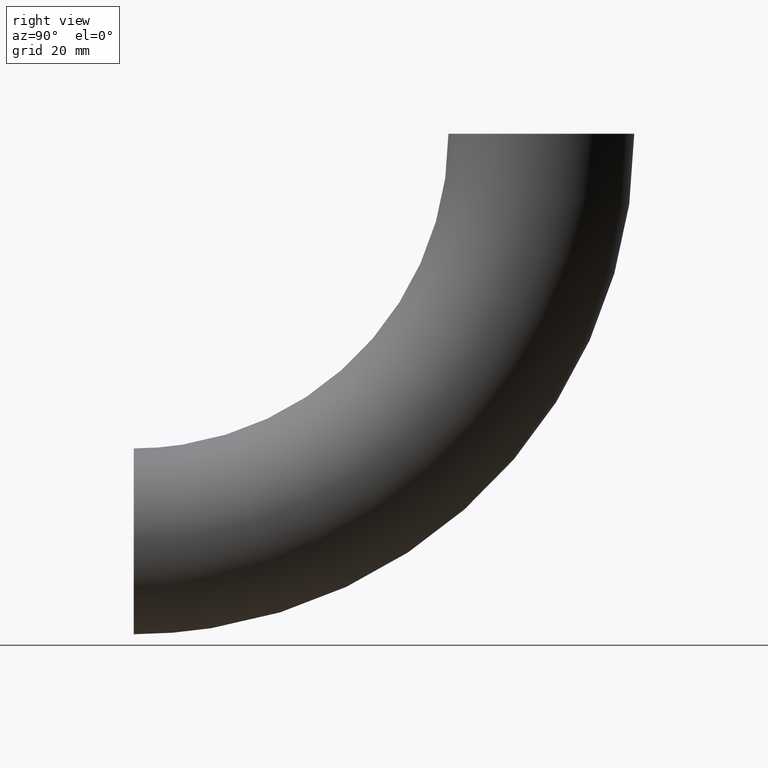
[diagram: clean part render]
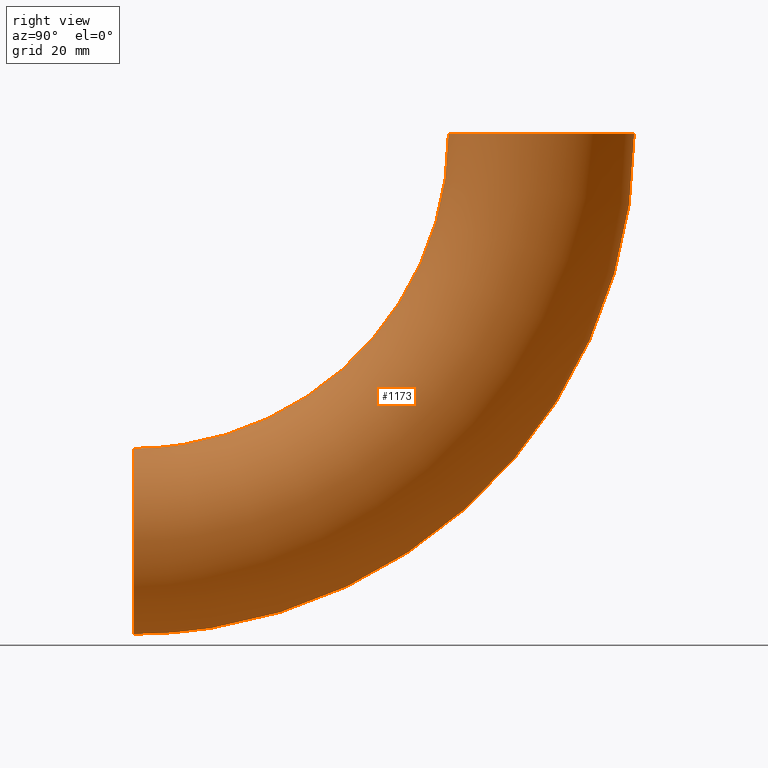
[diagram: same view with one face highlighted and labeled with its STEP entity id]
A machine part, right view. The second image highlights one B-rep face of the part: STEP entity #1173.
In plain terms, the highlighted toroidal blend (fillet) surface has major radius 93 mm and minor (blend) radius 21.2 mm.
Its self-contained STEP definition (entity closure, byte-faithful):
#279 = TOROIDAL_SURFACE ( 'NONE', #6986, 93.00000000000000000, 21.19999999999999574 ) ;
#337 = CARTESIAN_POINT ( 'NONE',  ( 0.000000000000000000, 71.79999999999999716, -4.396482008938998287E-15 ) ) ;
#392 = DIRECTION ( 'NONE',  ( 0.000000000000000000, 0.000000000000000000, 1.000000000000000000 ) ) ;
#980 = FACE_OUTER_BOUND ( 'NONE', #6118, .T. ) ;
#1173 = ADVANCED_FACE ( 'NONE', ( #7642, #980 ), #279, .T. ) ;
#1233 = CIRCLE ( 'NONE', #8471, 21.19999999999999574 ) ;
#2700 = ORIENTED_EDGE ( 'NONE', *, *, #3812, .T. ) ;
#3559 = VERTEX_POINT ( 'NONE', #10149 ) ;
#3812 = EDGE_CURVE ( 'NONE', #3559, #3559, #7907, .T. ) ;
#4084 = ORIENTED_EDGE ( 'NONE', *, *, #4674, .F. ) ;
#4674 = EDGE_CURVE ( 'NONE', #9843, #9843, #1233, .T. ) ;
#4687 = DIRECTION ( 'NONE',  ( 0.000000000000000000, 1.000000000000000000, 0.000000000000000000 ) ) ;
#4898 = AXIS2_PLACEMENT_3D ( 'NONE', #10699, #4687, #6281 ) ;
#5019 = CARTESIAN_POINT ( 'NONE',  ( 0.000000000000000000, 93.00000000000000000, -5.694607616035192278E-15 ) ) ;
#5657 = EDGE_LOOP ( 'NONE', ( #4084 ) ) ;
#5728 = DIRECTION ( 'NONE',  ( -1.000000000000000000, -0.000000000000000000, -0.000000000000000000 ) ) ;
#6118 = EDGE_LOOP ( 'NONE', ( #2700 ) ) ;
#6281 = DIRECTION ( 'NONE',  ( 0.000000000000000000, 0.000000000000000000, 1.000000000000000000 ) ) ;
#6986 = AXIS2_PLACEMENT_3D ( 'NONE', #11065, #5728, #392 ) ;
#7642 = FACE_OUTER_BOUND ( 'NONE', #5657, .T. ) ;
#7907 = CIRCLE ( 'NONE', #4898, 21.19999999999999574 ) ;
#8431 = DIRECTION ( 'NONE',  ( 0.000000000000000000, 6.123233995736766036E-17, 1.000000000000000000 ) ) ;
#8471 = AXIS2_PLACEMENT_3D ( 'NONE', #5019, #8431, #8472 ) ;
#8472 = DIRECTION ( 'NONE',  ( 0.000000000000000000, -1.000000000000000000, 6.123233995736764803E-17 ) ) ;
#9843 = VERTEX_POINT ( 'NONE', #337 ) ;
#10149 = CARTESIAN_POINT ( 'NONE',  ( 0.000000000000000000, 0.000000000000000000, -71.79999999999999716 ) ) ;
#10699 = CARTESIAN_POINT ( 'NONE',  ( 0.000000000000000000, 0.000000000000000000, -93.00000000000000000 ) ) ;
#11065 = CARTESIAN_POINT ( 'NONE',  ( 0.000000000000000000, 0.000000000000000000, 0.000000000000000000 ) ) ;